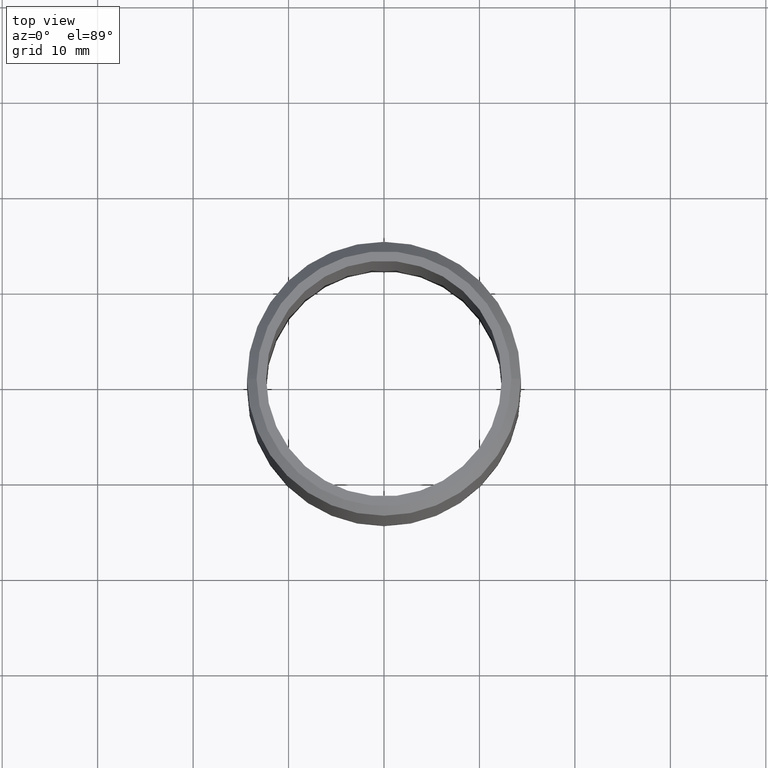
[diagram: clean part render]
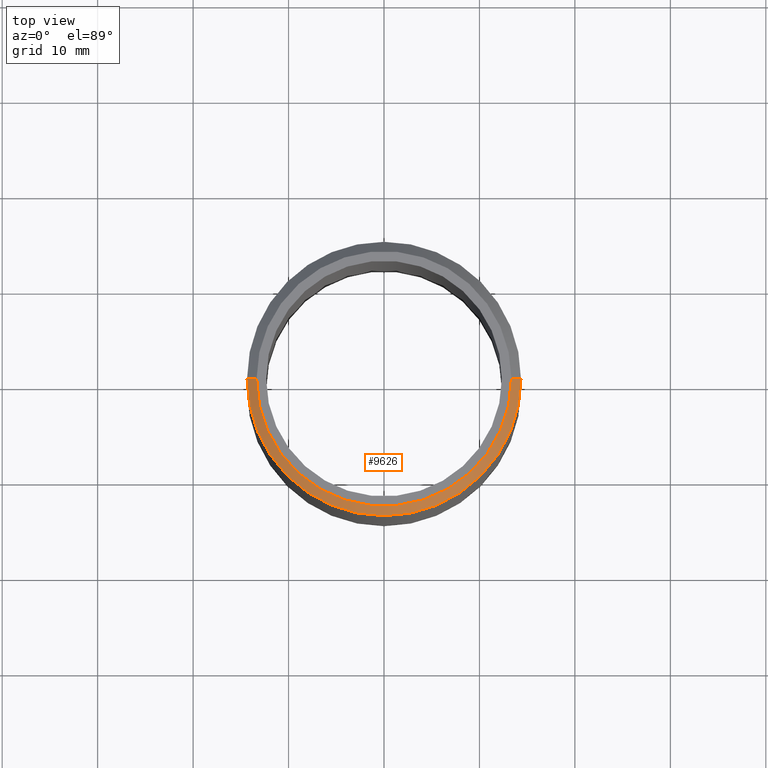
[diagram: same view with one face highlighted and labeled with its STEP entity id]
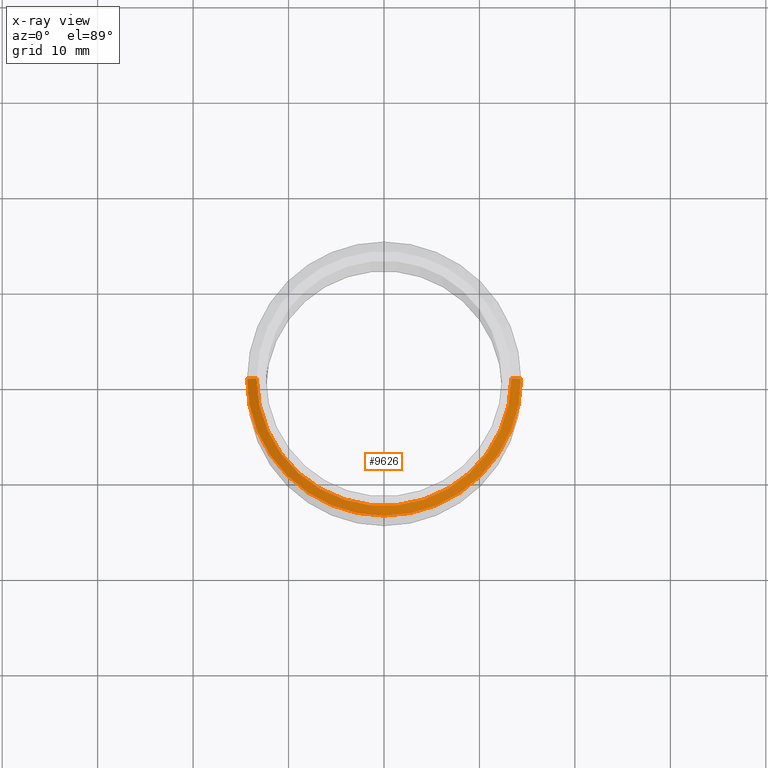
[diagram: x-ray of the same camera — body ghosted, the highlighted face saturated]
A machine part, top view. The second image highlights one B-rep face of the part: STEP entity #9626.
The next image is the same camera in x-ray: the body ghosted, the highlighted face saturated — about 0% of this face is hidden behind the body in this view.
In plain terms, the highlighted conical surface has half-angle 45 deg.
Its self-contained STEP definition (entity closure, byte-faithful):
#239 = DIRECTION ( 'NONE',  ( -0.7071067811865512400, 0.0000000000000000000, -0.7071067811865439100 ) ) ;
#307 = FACE_OUTER_BOUND ( 'NONE', #3167, .T. ) ;
#343 = DIRECTION ( 'NONE',  ( 0.7071067811865512400, 8.659560562354978500E-017, -0.7071067811865439100 ) ) ;
#448 = CIRCLE ( 'NONE', #6845, 14.35000000000000300 ) ;
#541 = DIRECTION ( 'NONE',  ( 0.0000000000000000000, 0.0000000000000000000, -1.000000000000000000 ) ) ;
#1088 = CARTESIAN_POINT ( 'NONE',  ( 13.35000000000000000, 1.696135816819084400E-015, 32.50000000000000000 ) ) ;
#1151 = VERTEX_POINT ( 'NONE', #1088 ) ;
#2549 = AXIS2_PLACEMENT_3D ( 'NONE', #9857, #8768, #11971 ) ;
#2683 = ORIENTED_EDGE ( 'NONE', *, *, #3075, .F. ) ;
#2955 = ORIENTED_EDGE ( 'NONE', *, *, #7322, .T. ) ;
#3075 = EDGE_CURVE ( 'NONE', #3302, #1151, #13865, .T. ) ;
#3167 = EDGE_LOOP ( 'NONE', ( #12712, #2683, #2955, #10293 ) ) ;
#3302 = VERTEX_POINT ( 'NONE', #10549 ) ;
#3749 = VERTEX_POINT ( 'NONE', #12428 ) ;
#4681 = EDGE_CURVE ( 'NONE', #1151, #3749, #9599, .T. ) ;
#4692 = CARTESIAN_POINT ( 'NONE',  ( 13.35000000000000000, 1.634903476861716400E-015, 32.50000000000000000 ) ) ;
#5117 = VECTOR ( 'NONE', #239, 1000.000000000000000 ) ;
#5954 = CARTESIAN_POINT ( 'NONE',  ( -14.35000000000000300, 0.0000000000000000000, 31.50000000000000700 ) ) ;
#6090 = AXIS2_PLACEMENT_3D ( 'NONE', #13429, #8092, #9175 ) ;
#6312 = CARTESIAN_POINT ( 'NONE',  ( 0.0000000000000000000, 0.0000000000000000000, 31.50000000000000700 ) ) ;
#6835 = LINE ( 'NONE', #11101, #5117 ) ;
#6845 = AXIS2_PLACEMENT_3D ( 'NONE', #6312, #541, #13932 ) ;
#7322 = EDGE_CURVE ( 'NONE', #3302, #10517, #6835, .T. ) ;
#8092 = DIRECTION ( 'NONE',  ( 0.0000000000000000000, 0.0000000000000000000, -1.000000000000000000 ) ) ;
#8768 = DIRECTION ( 'NONE',  ( 0.0000000000000000000, 0.0000000000000000000, 1.000000000000000000 ) ) ;
#9175 = DIRECTION ( 'NONE',  ( -1.000000000000000000, 0.0000000000000000000, 0.0000000000000000000 ) ) ;
#9599 = LINE ( 'NONE', #4692, #11785 ) ;
#9626 = ADVANCED_FACE ( 'NONE', ( #307 ), #10391, .T. ) ;
#9857 = CARTESIAN_POINT ( 'NONE',  ( 0.0000000000000000000, 0.0000000000000000000, 32.50000000000000000 ) ) ;
#10293 = ORIENTED_EDGE ( 'NONE', *, *, #13330, .F. ) ;
#10391 = CONICAL_SURFACE ( 'NONE', #6090, 13.35000000000000000, 0.7853981633974533900 ) ;
#10517 = VERTEX_POINT ( 'NONE', #5954 ) ;
#10549 = CARTESIAN_POINT ( 'NONE',  ( -13.35000000000000000, 0.0000000000000000000, 32.50000000000000000 ) ) ;
#11101 = CARTESIAN_POINT ( 'NONE',  ( -13.35000000000000000, 0.0000000000000000000, 32.50000000000000000 ) ) ;
#11785 = VECTOR ( 'NONE', #343, 1000.000000000000000 ) ;
#11971 = DIRECTION ( 'NONE',  ( 1.000000000000000000, 0.0000000000000000000, 0.0000000000000000000 ) ) ;
#12428 = CARTESIAN_POINT ( 'NONE',  ( 14.35000000000000300, 1.757368156776452400E-015, 31.50000000000000700 ) ) ;
#12712 = ORIENTED_EDGE ( 'NONE', *, *, #4681, .F. ) ;
#13330 = EDGE_CURVE ( 'NONE', #3749, #10517, #448, .T. ) ;
#13429 = CARTESIAN_POINT ( 'NONE',  ( 0.0000000000000000000, 0.0000000000000000000, 32.50000000000000000 ) ) ;
#13865 = CIRCLE ( 'NONE', #2549, 13.35000000000000000 ) ;
#13932 = DIRECTION ( 'NONE',  ( 1.000000000000000000, 0.0000000000000000000, 0.0000000000000000000 ) ) ;